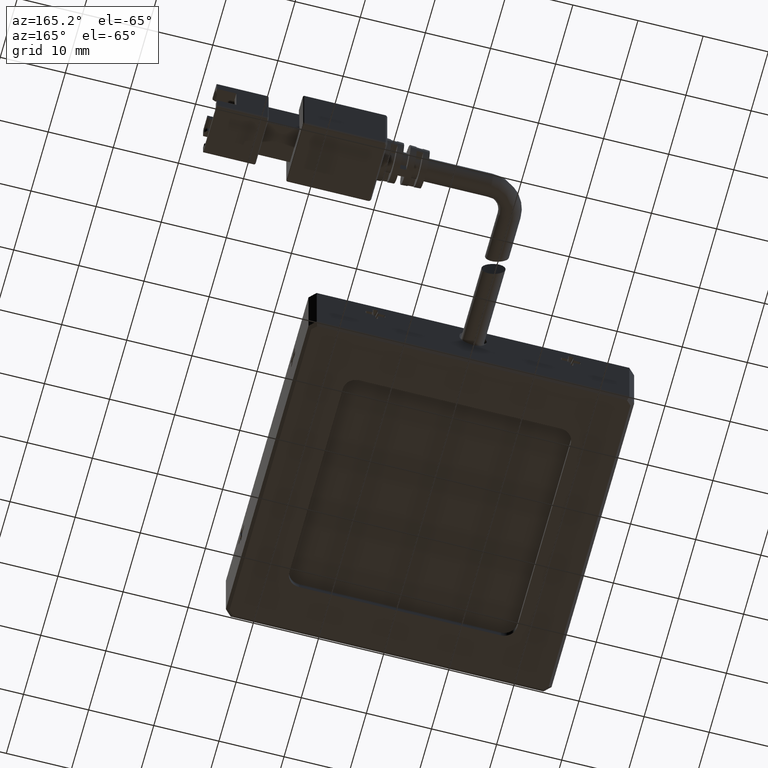
[diagram: clean part render]
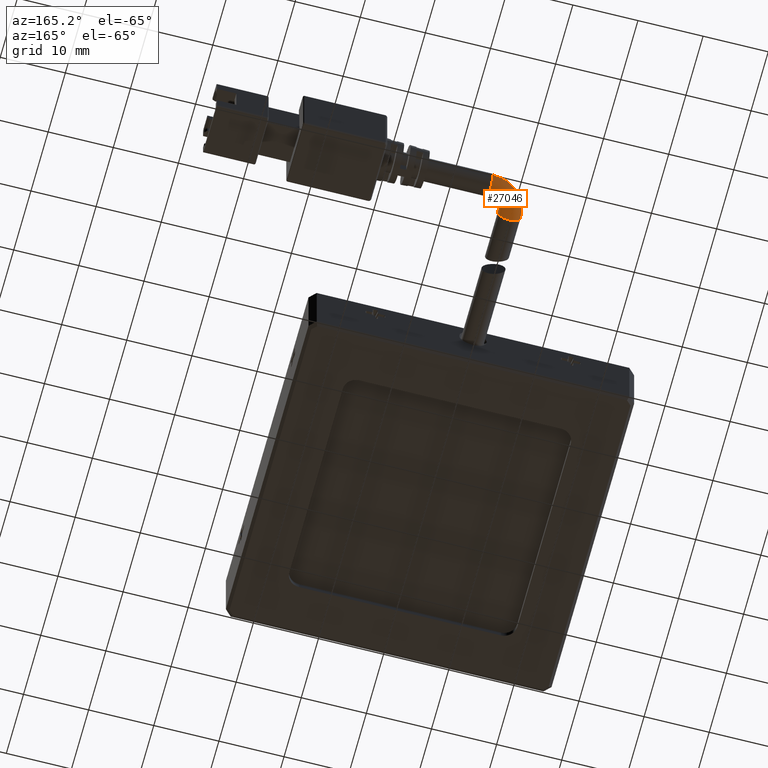
[diagram: same view with one face highlighted and labeled with its STEP entity id]
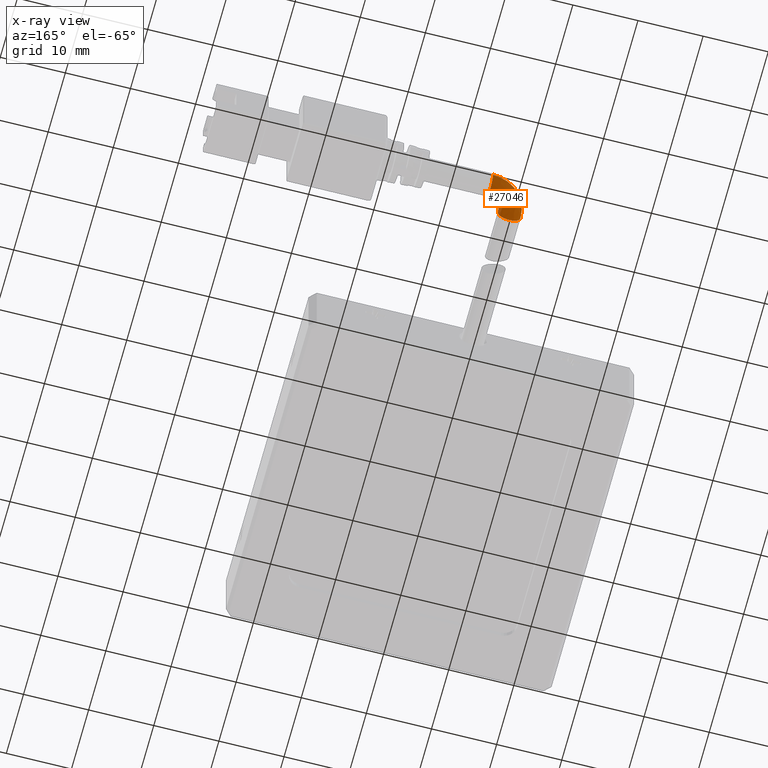
[diagram: x-ray of the same camera — body ghosted, the highlighted face saturated]
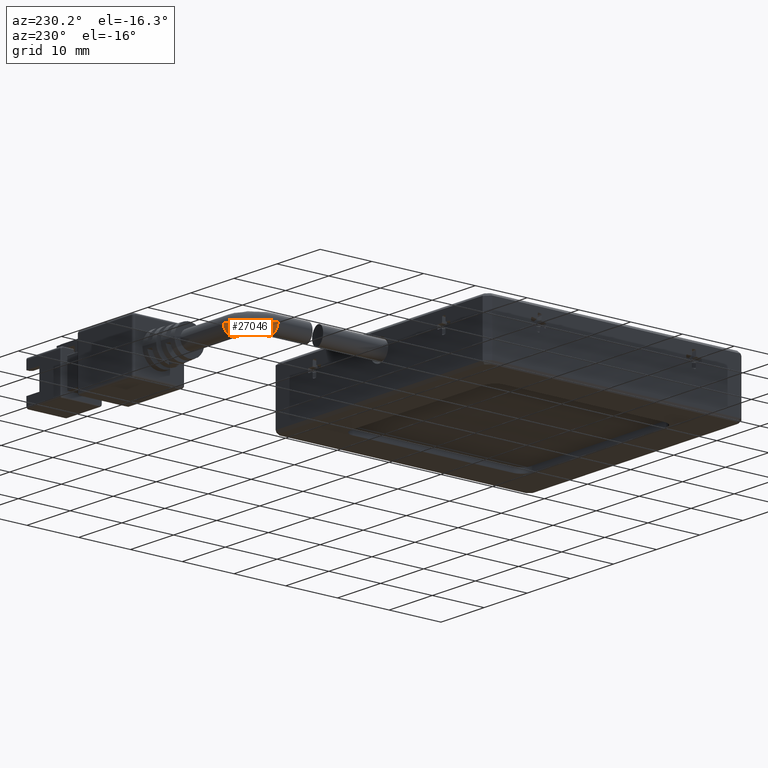
[diagram: same view with one face highlighted and labeled with its STEP entity id]
A machine part, auxiliary view. The second image highlights one B-rep face of the part: STEP entity #27046.
The next image is the same camera in x-ray: the body ghosted, the highlighted face saturated — about 0% of this face is hidden behind the body in this view.
A second angle (auxiliary view) of the same face is appended — the face is thin or edge-on in the first view.
In plain terms, the highlighted face is a freeform B-spline surface patch.
Its self-contained STEP definition (entity closure, byte-faithful):
#248 = CARTESIAN_POINT ( 'NONE',  ( 23.26702531645571900, 62.46113924050633400, -4.750000000000000000 ) ) ;
#2336 = VERTEX_POINT ( 'NONE', #25167 ) ;
#2390 = VERTEX_POINT ( 'NONE', #15732 ) ;
#2946 = CARTESIAN_POINT ( 'NONE',  ( 23.26702531645571900, 60.21113924050633400, -1.250000000000000900 ) ) ;
#3547 = CARTESIAN_POINT ( 'NONE',  ( 21.01702531645571900, 61.52915872516687300, -4.750000000000000000 ) ) ;
#5182 = CARTESIAN_POINT ( 'NONE',  ( 19.26702531645571900, 60.21113924050633400, -1.250000000000000700 ) ) ;
#5715 = CARTESIAN_POINT ( 'NONE',  ( 23.26702531645571900, 64.21113924050634100, -1.250000000000000700 ) ) ;
#6216 = DIRECTION ( 'NONE',  ( 0.0000000000000000000, -1.000000000000000000, 0.0000000000000000000 ) ) ;
#6726 = ORIENTED_EDGE ( 'NONE', *, *, #20587, .T. ) ;
#6812 = CARTESIAN_POINT ( 'NONE',  ( 23.26702531645571900, 62.46113924050633400, -1.250000000000000900 ) ) ;
#7951 = VERTEX_POINT ( 'NONE', #15994 ) ;
#8969 = DIRECTION ( 'NONE',  ( 0.0000000000000000000, 1.000000000000000000, -1.239088197126289600E-016 ) ) ;
#9009 = DIRECTION ( 'NONE',  ( -1.000000000000000000, 0.0000000000000000000, 0.0000000000000000000 ) ) ;
#9884 = CARTESIAN_POINT ( 'NONE',  ( 19.89875330010101400, 65.96113924050634100, -1.250000000000000400 ) ) ;
#10028 = CARTESIAN_POINT ( 'NONE',  ( 21.01702531645571500, 61.52915872516687300, -1.250000000000000900 ) ) ;
#10410 = FACE_OUTER_BOUND ( 'NONE', #38861, .T. ) ;
#12027 = EDGE_CURVE ( 'NONE', #2336, #7951, #33315, .T. ) ;
#12431 = AXIS2_PLACEMENT_3D ( 'NONE', #2946, #25571, #6216 ) ;
#13168 = CARTESIAN_POINT ( 'NONE',  ( 17.51702531645571500, 60.21113924050633400, -1.250000000000000700 ) ) ;
#13338 = DIRECTION ( 'NONE',  ( 0.0000000000000000000, -2.465190328815661900E-032, 1.000000000000000000 ) ) ;
#13560 = ORIENTED_EDGE ( 'NONE', *, *, #26566, .F. ) ;
#14460 = VERTEX_POINT ( 'NONE', #19107 ) ;
#14532 = CIRCLE ( 'NONE', #20872, 1.749999999999998000 ) ;
#15732 = CARTESIAN_POINT ( 'NONE',  ( 19.26702531645571900, 60.21113924050633400, -3.000000000000000900 ) ) ;
#15994 = CARTESIAN_POINT ( 'NONE',  ( 23.26702531645571900, 65.96113924050634100, -1.250000000000000700 ) ) ;
#16397 = DIRECTION ( 'NONE',  ( 1.836970198721029700E-016, 1.000000000000000000, 2.465190328815661900E-032 ) ) ;
#16431 = CARTESIAN_POINT ( 'NONE',  ( 19.89875330010101400, 65.96113924050632700, -4.750000000000000000 ) ) ;
#19047 = CIRCLE ( 'NONE', #23078, 5.749999999999998200 ) ;
#19107 = CARTESIAN_POINT ( 'NONE',  ( 17.51702531645572200, 60.21113924050633400, -1.250000000000000700 ) ) ;
#19664 = CARTESIAN_POINT ( 'NONE',  ( 17.51702531645571500, 60.21113924050633400, -4.750000000000000000 ) ) ;
#19821 = AXIS2_PLACEMENT_3D ( 'NONE', #35804, #16397, #39071 ) ;
#19846 = ORIENTED_EDGE ( 'NONE', *, *, #32781, .T. ) ;
#19942 = CIRCLE ( 'NONE', #12431, 2.249999999999995100 ) ;
#20235 = EDGE_CURVE ( 'NONE', #2336, #38885, #19942, .T. ) ;
#20587 = EDGE_CURVE ( 'NONE', #2390, #14460, #14532, .T. ) ;
#20872 = AXIS2_PLACEMENT_3D ( 'NONE', #5182, #28410, #9009 ) ;
#22887 = CARTESIAN_POINT ( 'NONE',  ( 21.94900583179518000, 62.46113924050633400, -4.750000000000000000 ) ) ;
#23078 = AXIS2_PLACEMENT_3D ( 'NONE', #32777, #13338, #36045 ) ;
#25167 = CARTESIAN_POINT ( 'NONE',  ( 23.26702531645571900, 62.46113924050633400, -1.250000000000000900 ) ) ;
#25571 = DIRECTION ( 'NONE',  ( 0.0000000000000000000, -2.465190328815661900E-032, 1.000000000000000000 ) ) ;
#26149 = CARTESIAN_POINT ( 'NONE',  ( 21.01702531645571500, 60.21113924050633400, -4.750000000000000000 ) ) ;
#26566 = EDGE_CURVE ( 'NONE', #7951, #14460, #19047, .T. ) ;
#27046 = ADVANCED_FACE ( 'NONE', ( #10410 ), #36695, .T. ) ;
#28369 = DIRECTION ( 'NONE',  ( 1.000000000000000000, 0.0000000000000000000, 0.0000000000000000000 ) ) ;
#28410 = DIRECTION ( 'NONE',  ( 1.836970198721029700E-016, 1.000000000000000000, 2.465190328815661900E-032 ) ) ;
#29437 = CARTESIAN_POINT ( 'NONE',  ( 21.94900583179518300, 62.46113924050633400, -1.250000000000000900 ) ) ;
#30422 = CARTESIAN_POINT ( 'NONE',  ( 21.01702531645572200, 60.21113924050633400, -1.250000000000000900 ) ) ;
#31777 = ORIENTED_EDGE ( 'NONE', *, *, #20235, .T. ) ;
#32595 = CARTESIAN_POINT ( 'NONE',  ( 17.51702531645571500, 63.57941125686104300, -1.250000000000000400 ) ) ;
#32728 = CARTESIAN_POINT ( 'NONE',  ( 21.01702531645571900, 60.21113924050633400, -1.250000000000000900 ) ) ;
#32777 = CARTESIAN_POINT ( 'NONE',  ( 23.26702531645571900, 60.21113924050633400, -1.250000000000000700 ) ) ;
#32781 = EDGE_CURVE ( 'NONE', #38885, #2390, #33984, .T. ) ;
#33315 = CIRCLE ( 'NONE', #37203, 1.750000000000001600 ) ;
#33984 = CIRCLE ( 'NONE', #19821, 1.749999999999998000 ) ;
#35694 = CARTESIAN_POINT ( 'NONE',  ( 23.26702531645571900, 65.96113924050634100, -1.250000000000000700 ) ) ;
#35804 = CARTESIAN_POINT ( 'NONE',  ( 19.26702531645571900, 60.21113924050633400, -1.250000000000000700 ) ) ;
#35848 = CARTESIAN_POINT ( 'NONE',  ( 23.26702531645571900, 65.96113924050632700, -4.750000000000000000 ) ) ;
#36045 = DIRECTION ( 'NONE',  ( 0.0000000000000000000, -1.000000000000000000, 0.0000000000000000000 ) ) ;
#36695 =( BOUNDED_SURFACE ( )  B_SPLINE_SURFACE ( 3, 3, ( 
 ( #35694, #9884, #32595, #13168 ),
 ( #35848, #16431, #39109, #19664 ),
 ( #248, #22887, #3547, #26149 ),
 ( #6812, #29437, #10028, #32728 ) ),
 .UNSPECIFIED., .F., .F., .F. ) 
 B_SPLINE_SURFACE_WITH_KNOTS ( ( 4, 4 ),
 ( 4, 4 ),
 ( 0.0000000000000000000, 1.000000000000000000 ),
 ( 0.0000000000000000000, 1.000000000000000000 ),
 .UNSPECIFIED. ) 
 GEOMETRIC_REPRESENTATION_ITEM ( )  RATIONAL_B_SPLINE_SURFACE ( (
 ( 1.000000000000000000, 0.8047378541243649400, 0.8047378541243649400, 1.000000000000000000),
 ( 0.3333333333333333700, 0.2682459513747883500, 0.2682459513747883500, 0.3333333333333333700),
 ( 0.3333333333333333700, 0.2682459513747883500, 0.2682459513747883500, 0.3333333333333333700),
 ( 1.000000000000000000, 0.8047378541243649400, 0.8047378541243649400, 1.000000000000000000) ) ) 
 REPRESENTATION_ITEM ( '' )  SURFACE ( )  );
#37203 = AXIS2_PLACEMENT_3D ( 'NONE', #5715, #28369, #8969 ) ;
#38594 = ORIENTED_EDGE ( 'NONE', *, *, #12027, .F. ) ;
#38861 = EDGE_LOOP ( 'NONE', ( #38594, #31777, #19846, #6726, #13560 ) ) ;
#38885 = VERTEX_POINT ( 'NONE', #30422 ) ;
#39071 = DIRECTION ( 'NONE',  ( -1.000000000000000000, 0.0000000000000000000, 0.0000000000000000000 ) ) ;
#39109 = CARTESIAN_POINT ( 'NONE',  ( 17.51702531645571500, 63.57941125686103600, -4.750000000000000000 ) ) ;